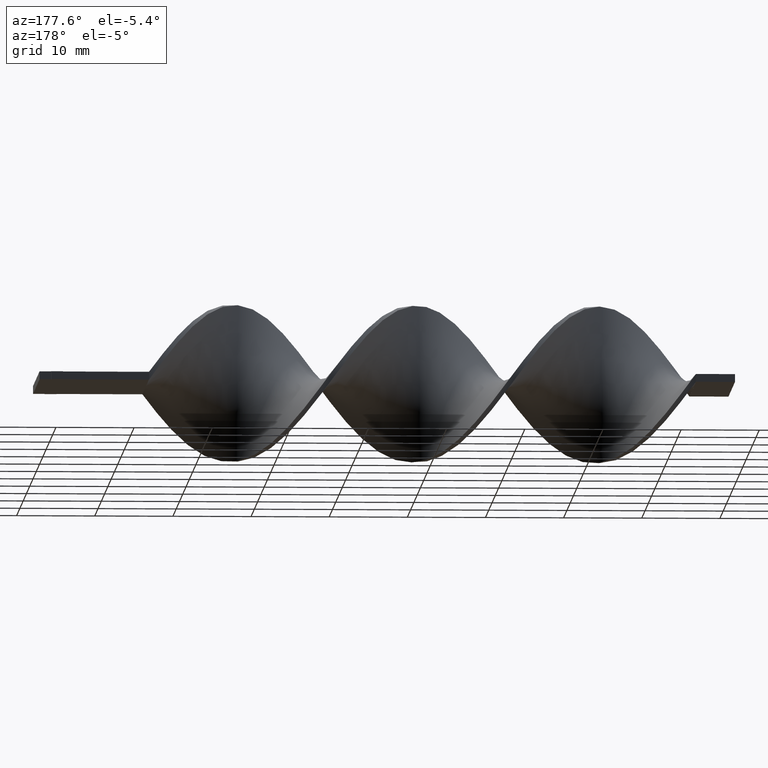
[diagram: clean part render]
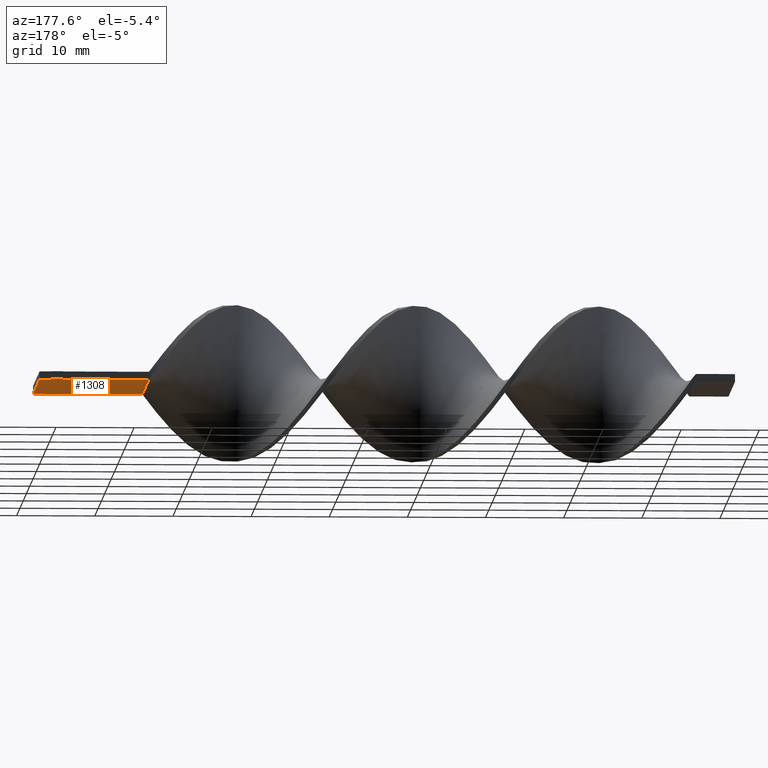
[diagram: same view with one face highlighted and labeled with its STEP entity id]
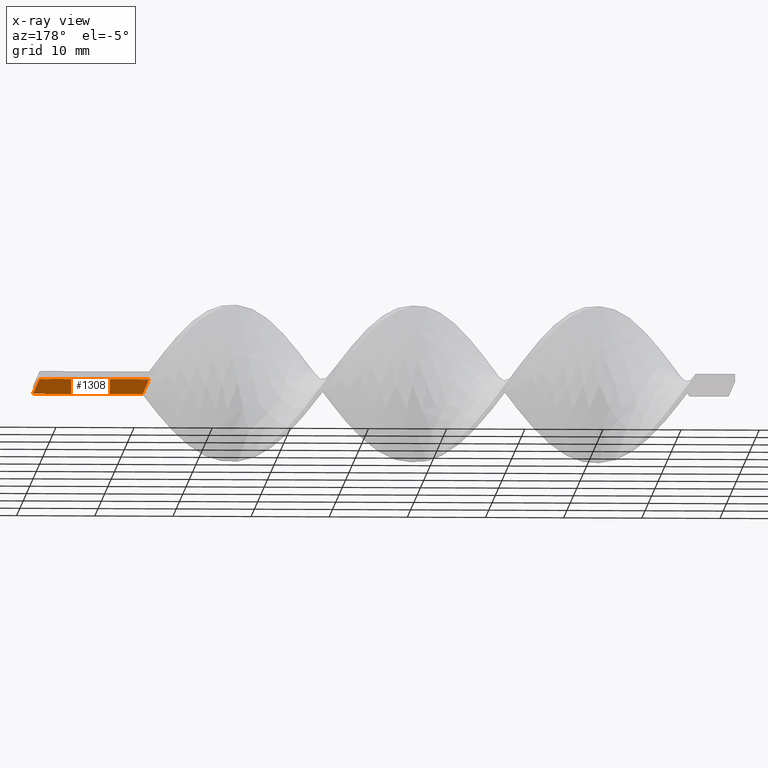
[diagram: x-ray of the same camera — body ghosted, the highlighted face saturated]
A machine part, auxiliary view. The second image highlights one B-rep face of the part: STEP entity #1308.
The next image is the same camera in x-ray: the body ghosted, the highlighted face saturated — about 0% of this face is hidden behind the body in this view.
In plain terms, the highlighted planar face has unit normal (0, 0, 1).
Its self-contained STEP definition (entity closure, byte-faithful):
#19 = VECTOR ( 'NONE', #674, 1000.000000000000000 ) ;
#24 = VERTEX_POINT ( 'NONE', #721 ) ;
#26 = EDGE_CURVE ( 'NONE', #688, #661, #348, .T. ) ;
#29 = CARTESIAN_POINT ( 'NONE',  ( -2.999999999999993339, -10.00000000000000000, -0.5000000000000000000 ) ) ;
#66 = ORIENTED_EDGE ( 'NONE', *, *, #1545, .T. ) ;
#72 = VECTOR ( 'NONE', #841, 1000.000000000000000 ) ;
#89 = CARTESIAN_POINT ( 'NONE',  ( -2.999999999999995559, 10.30000000000000071, -0.5000000000000000000 ) ) ;
#108 = CARTESIAN_POINT ( 'NONE',  ( 0.000000000000000000, -10.00000000000000000, -0.5000000000000000000 ) ) ;
#128 = VECTOR ( 'NONE', #213, 1000.000000000000000 ) ;
#136 = LINE ( 'NONE', #477, #1398 ) ;
#156 = ORIENTED_EDGE ( 'NONE', *, *, #220, .T. ) ;
#172 = LINE ( 'NONE', #1417, #128 ) ;
#173 = ORIENTED_EDGE ( 'NONE', *, *, #1287, .F. ) ;
#177 = LINE ( 'NONE', #915, #19 ) ;
#191 = VERTEX_POINT ( 'NONE', #1231 ) ;
#213 = DIRECTION ( 'NONE',  ( 8.673617379884035472E-17, -1.000000000000000000, 0.000000000000000000 ) ) ;
#215 = CARTESIAN_POINT ( 'NONE',  ( -1.499999999999995781, 10.30000000000000071, -0.5000000000000000000 ) ) ;
#220 = EDGE_CURVE ( 'NONE', #1073, #233, #1399, .T. ) ;
#221 = DIRECTION ( 'NONE',  ( -1.000000000000000000, 0.000000000000000000, 0.000000000000000000 ) ) ;
#233 = VERTEX_POINT ( 'NONE', #264 ) ;
#238 = CARTESIAN_POINT ( 'NONE',  ( -2.999999999999993339, -10.00000000000000000, -0.5000000000000000000 ) ) ;
#264 = CARTESIAN_POINT ( 'NONE',  ( -13.99999999999999645, -10.00000000000000178, -0.5000000000000000000 ) ) ;
#266 = VERTEX_POINT ( 'NONE', #384 ) ;
#302 = ORIENTED_EDGE ( 'NONE', *, *, #775, .F. ) ;
#344 = LINE ( 'NONE', #1326, #1385 ) ;
#347 = DIRECTION ( 'NONE',  ( 0.000000000000000000, -1.000000000000000000, 0.000000000000000000 ) ) ;
#348 = LINE ( 'NONE', #1607, #1133 ) ;
#384 = CARTESIAN_POINT ( 'NONE',  ( -2.999999999999993339, -10.30000000000000071, -0.5000000000000000000 ) ) ;
#412 = EDGE_CURVE ( 'NONE', #425, #266, #1344, .T. ) ;
#418 = CARTESIAN_POINT ( 'NONE',  ( -1.499999999999993117, -10.30000000000000071, -0.5000000000000000000 ) ) ;
#425 = VERTEX_POINT ( 'NONE', #656 ) ;
#460 = EDGE_CURVE ( 'NONE', #266, #1073, #504, .T. ) ;
#477 = CARTESIAN_POINT ( 'NONE',  ( -2.449293598294706513E-15, 10.00000000000000000, -0.5000000000000000000 ) ) ;
#495 = EDGE_CURVE ( 'NONE', #1382, #24, #136, .T. ) ;
#504 = LINE ( 'NONE', #1225, #567 ) ;
#558 = DIRECTION ( 'NONE',  ( -1.000000000000000000, 0.000000000000000000, 0.000000000000000000 ) ) ;
#567 = VECTOR ( 'NONE', #732, 1000.000000000000000 ) ;
#630 = DIRECTION ( 'NONE',  ( 0.000000000000000000, 1.000000000000000000, 0.000000000000000000 ) ) ;
#656 = CARTESIAN_POINT ( 'NONE',  ( -1.499999999999993117, -10.30000000000000071, -0.5000000000000000000 ) ) ;
#661 = VERTEX_POINT ( 'NONE', #1477 ) ;
#674 = DIRECTION ( 'NONE',  ( -1.000000000000000000, 0.000000000000000000, 0.000000000000000000 ) ) ;
#678 = FACE_OUTER_BOUND ( 'NONE', #785, .T. ) ;
#685 = EDGE_CURVE ( 'NONE', #1260, #688, #1605, .T. ) ;
#688 = VERTEX_POINT ( 'NONE', #1493 ) ;
#721 = CARTESIAN_POINT ( 'NONE',  ( -1.499999999999995781, 10.00000000000000000, -0.5000000000000000000 ) ) ;
#732 = DIRECTION ( 'NONE',  ( 0.000000000000000000, 1.000000000000000000, 0.000000000000000000 ) ) ;
#758 = DIRECTION ( 'NONE',  ( -1.000000000000000000, -1.577021341797097067E-16, 0.000000000000000000 ) ) ;
#770 = VERTEX_POINT ( 'NONE', #215 ) ;
#775 = EDGE_CURVE ( 'NONE', #1520, #1382, #995, .T. ) ;
#785 = EDGE_LOOP ( 'NONE', ( #66, #1494, #989, #1108, #156, #173, #1194, #920, #1320, #954, #1332, #302 ) ) ;
#804 = AXIS2_PLACEMENT_3D ( 'NONE', #1087, #1586, #824 ) ;
#806 = VECTOR ( 'NONE', #630, 1000.000000000000000 ) ;
#822 = VECTOR ( 'NONE', #758, 1000.000000000000000 ) ;
#824 = DIRECTION ( 'NONE',  ( 1.000000000000000000, 0.000000000000000000, -0.000000000000000000 ) ) ;
#841 = DIRECTION ( 'NONE',  ( 7.228014483236698528E-16, -1.000000000000000000, 0.000000000000000000 ) ) ;
#915 = CARTESIAN_POINT ( 'NONE',  ( 0.000000000000000000, -10.00000000000000000, -0.5000000000000000000 ) ) ;
#920 = ORIENTED_EDGE ( 'NONE', *, *, #685, .F. ) ;
#954 = ORIENTED_EDGE ( 'NONE', *, *, #1459, .F. ) ;
#968 = LINE ( 'NONE', #1466, #72 ) ;
#988 = CARTESIAN_POINT ( 'NONE',  ( -2.999999999999995559, 10.30000000000000071, -0.5000000000000000000 ) ) ;
#989 = ORIENTED_EDGE ( 'NONE', *, *, #412, .T. ) ;
#995 = LINE ( 'NONE', #1588, #1036 ) ;
#1036 = VECTOR ( 'NONE', #1612, 1000.000000000000000 ) ;
#1059 = VECTOR ( 'NONE', #558, 1000.000000000000000 ) ;
#1073 = VERTEX_POINT ( 'NONE', #238 ) ;
#1087 = CARTESIAN_POINT ( 'NONE',  ( 0.000000000000000000, 0.000000000000000000, -0.5000000000000000000 ) ) ;
#1090 = EDGE_CURVE ( 'NONE', #191, #425, #968, .T. ) ;
#1108 = ORIENTED_EDGE ( 'NONE', *, *, #460, .T. ) ;
#1131 = LINE ( 'NONE', #1377, #806 ) ;
#1133 = VECTOR ( 'NONE', #1214, 1000.000000000000000 ) ;
#1169 = PLANE ( 'NONE',  #804 ) ;
#1194 = ORIENTED_EDGE ( 'NONE', *, *, #26, .F. ) ;
#1214 = DIRECTION ( 'NONE',  ( -1.000000000000000000, -1.577021341797097067E-16, 0.000000000000000000 ) ) ;
#1225 = CARTESIAN_POINT ( 'NONE',  ( -2.999999999999993339, -10.30000000000000071, -0.5000000000000000000 ) ) ;
#1231 = CARTESIAN_POINT ( 'NONE',  ( -1.499999999999993339, -10.00000000000000000, -0.5000000000000000000 ) ) ;
#1260 = VERTEX_POINT ( 'NONE', #89 ) ;
#1287 = EDGE_CURVE ( 'NONE', #661, #233, #172, .T. ) ;
#1308 = ADVANCED_FACE ( 'NONE', ( #678 ), #1169, .F. ) ;
#1320 = ORIENTED_EDGE ( 'NONE', *, *, #1599, .F. ) ;
#1326 = CARTESIAN_POINT ( 'NONE',  ( -1.499999999999995781, 10.30000000000000071, -0.5000000000000000000 ) ) ;
#1332 = ORIENTED_EDGE ( 'NONE', *, *, #495, .F. ) ;
#1344 = LINE ( 'NONE', #418, #1059 ) ;
#1377 = CARTESIAN_POINT ( 'NONE',  ( -1.499999999999995781, 10.00000000000000000, -0.5000000000000000000 ) ) ;
#1382 = VERTEX_POINT ( 'NONE', #1546 ) ;
#1385 = VECTOR ( 'NONE', #221, 1000.000000000000000 ) ;
#1398 = VECTOR ( 'NONE', #1497, 1000.000000000000000 ) ;
#1399 = LINE ( 'NONE', #29, #822 ) ;
#1417 = CARTESIAN_POINT ( 'NONE',  ( -13.99999999999999822, 9.999999999999998224, -0.5000000000000000000 ) ) ;
#1459 = EDGE_CURVE ( 'NONE', #24, #770, #1131, .T. ) ;
#1466 = CARTESIAN_POINT ( 'NONE',  ( -1.499999999999993339, -10.00000000000000000, -0.5000000000000000000 ) ) ;
#1477 = CARTESIAN_POINT ( 'NONE',  ( -13.99999999999999822, 9.999999999999998224, -0.5000000000000000000 ) ) ;
#1493 = CARTESIAN_POINT ( 'NONE',  ( -2.999999999999995559, 10.00000000000000000, -0.5000000000000000000 ) ) ;
#1494 = ORIENTED_EDGE ( 'NONE', *, *, #1090, .T. ) ;
#1497 = DIRECTION ( 'NONE',  ( -1.000000000000000000, 0.000000000000000000, 0.000000000000000000 ) ) ;
#1520 = VERTEX_POINT ( 'NONE', #108 ) ;
#1532 = VECTOR ( 'NONE', #347, 1000.000000000000000 ) ;
#1545 = EDGE_CURVE ( 'NONE', #1520, #191, #177, .T. ) ;
#1546 = CARTESIAN_POINT ( 'NONE',  ( -2.449293598294706513E-15, 10.00000000000000000, -0.5000000000000000000 ) ) ;
#1586 = DIRECTION ( 'NONE',  ( 0.000000000000000000, 0.000000000000000000, 1.000000000000000000 ) ) ;
#1588 = CARTESIAN_POINT ( 'NONE',  ( 0.000000000000000000, -10.00000000000000000, -0.5000000000000000000 ) ) ;
#1599 = EDGE_CURVE ( 'NONE', #770, #1260, #344, .T. ) ;
#1605 = LINE ( 'NONE', #988, #1532 ) ;
#1607 = CARTESIAN_POINT ( 'NONE',  ( -2.999999999999995559, 10.00000000000000000, -0.5000000000000000000 ) ) ;
#1612 = DIRECTION ( 'NONE',  ( -1.224646799147353207E-16, 1.000000000000000000, 0.000000000000000000 ) ) ;